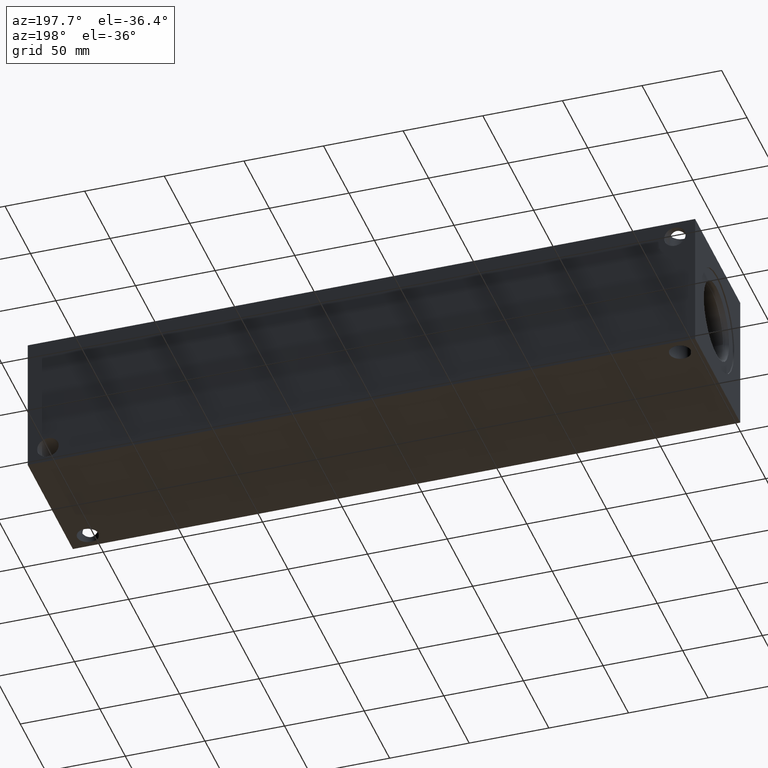
[diagram: clean part render]
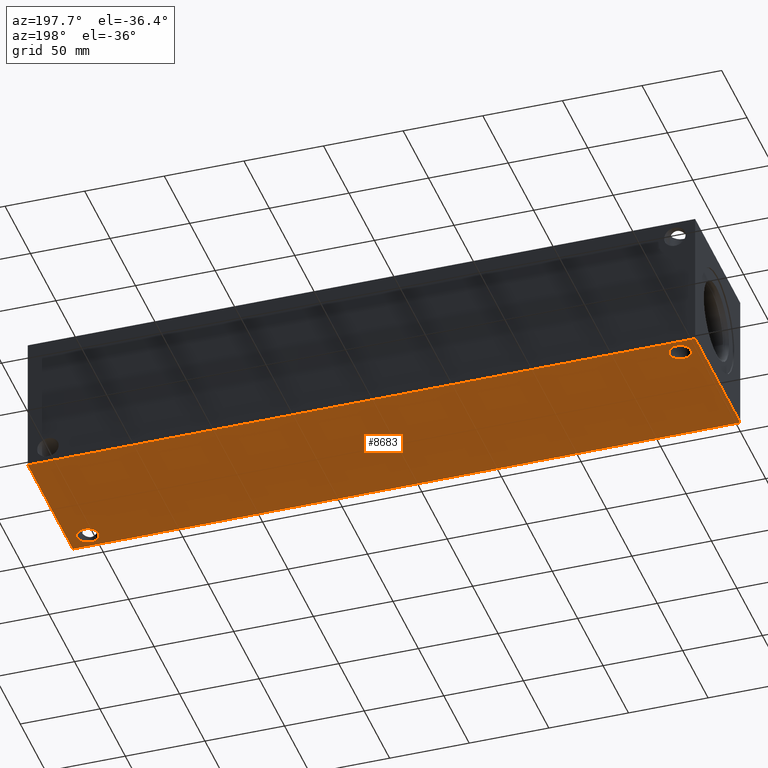
[diagram: same view with one face highlighted and labeled with its STEP entity id]
A machine part, auxiliary view. The second image highlights one B-rep face of the part: STEP entity #8683.
In plain terms, the highlighted planar face has unit normal (0, 0, 1).
Its self-contained STEP definition (entity closure, byte-faithful):
#281=CIRCLE('',#9134,6.7437);
#282=CIRCLE('',#9136,6.7437);
#432=FACE_BOUND('',#1739,.T.);
#433=FACE_BOUND('',#1740,.T.);
#1223=FACE_OUTER_BOUND('',#1738,.T.);
#1738=EDGE_LOOP('',(#7681,#7682,#7683,#7684));
#1739=EDGE_LOOP('',(#7685));
#1740=EDGE_LOOP('',(#7686));
#2479=LINE('',#15344,#3220);
#2482=LINE('',#15349,#3223);
#2484=LINE('',#15353,#3225);
#2486=LINE('',#15356,#3227);
#3220=VECTOR('',#11171,10.);
#3223=VECTOR('',#11176,10.);
#3225=VECTOR('',#11180,10.);
#3227=VECTOR('',#11184,10.);
#3946=VERTEX_POINT('',#15065);
#3947=VERTEX_POINT('',#15069);
#4034=VERTEX_POINT('',#15342);
#4035=VERTEX_POINT('',#15343);
#4036=VERTEX_POINT('',#15348);
#4037=VERTEX_POINT('',#15352);
#5117=EDGE_CURVE('',#3946,#3946,#281,.T.);
#5119=EDGE_CURVE('',#3947,#3947,#282,.T.);
#5247=EDGE_CURVE('',#4034,#4035,#2479,.T.);
#5250=EDGE_CURVE('',#4036,#4034,#2482,.T.);
#5252=EDGE_CURVE('',#4037,#4036,#2484,.T.);
#5254=EDGE_CURVE('',#4035,#4037,#2486,.T.);
#7681=ORIENTED_EDGE('',*,*,#5254,.F.);
#7682=ORIENTED_EDGE('',*,*,#5247,.F.);
#7683=ORIENTED_EDGE('',*,*,#5250,.F.);
#7684=ORIENTED_EDGE('',*,*,#5252,.F.);
#7685=ORIENTED_EDGE('',*,*,#5117,.T.);
#7686=ORIENTED_EDGE('',*,*,#5119,.T.);
#7935=PLANE('',#9281);
#8683=ADVANCED_FACE('',(#1223,#432,#433),#7935,.F.);
#9134=AXIS2_PLACEMENT_3D('',#15067,#10840,#10841);
#9136=AXIS2_PLACEMENT_3D('',#15071,#10845,#10846);
#9281=AXIS2_PLACEMENT_3D('',#15358,#11187,#11188);
#10840=DIRECTION('center_axis',(0.,0.,1.));
#10841=DIRECTION('ref_axis',(1.,0.,0.));
#10845=DIRECTION('center_axis',(0.,0.,1.));
#10846=DIRECTION('ref_axis',(1.,0.,0.));
#11171=DIRECTION('',(0.,-1.,0.));
#11176=DIRECTION('',(-1.,0.,0.));
#11180=DIRECTION('',(0.,1.,0.));
#11184=DIRECTION('',(1.,0.,0.));
#11187=DIRECTION('center_axis',(0.,0.,1.));
#11188=DIRECTION('ref_axis',(1.,0.,0.));
#15065=CARTESIAN_POINT('',(5.9563,78.5876,0.));
#15067=CARTESIAN_POINT('Origin',(12.7,78.5876,0.));
#15069=CARTESIAN_POINT('',(399.6563,10.3124,0.));
#15071=CARTESIAN_POINT('Origin',(406.4,10.3124,0.));
#15342=CARTESIAN_POINT('',(0.,88.9,0.));
#15343=CARTESIAN_POINT('',(0.,0.,0.));
#15344=CARTESIAN_POINT('',(0.,88.9,0.));
#15348=CARTESIAN_POINT('',(419.1,88.9,0.));
#15349=CARTESIAN_POINT('',(419.1,88.9,0.));
#15352=CARTESIAN_POINT('',(419.1,0.,0.));
#15353=CARTESIAN_POINT('',(419.1,0.,0.));
#15356=CARTESIAN_POINT('',(0.,0.,0.));
#15358=CARTESIAN_POINT('Origin',(209.55,44.45,0.));